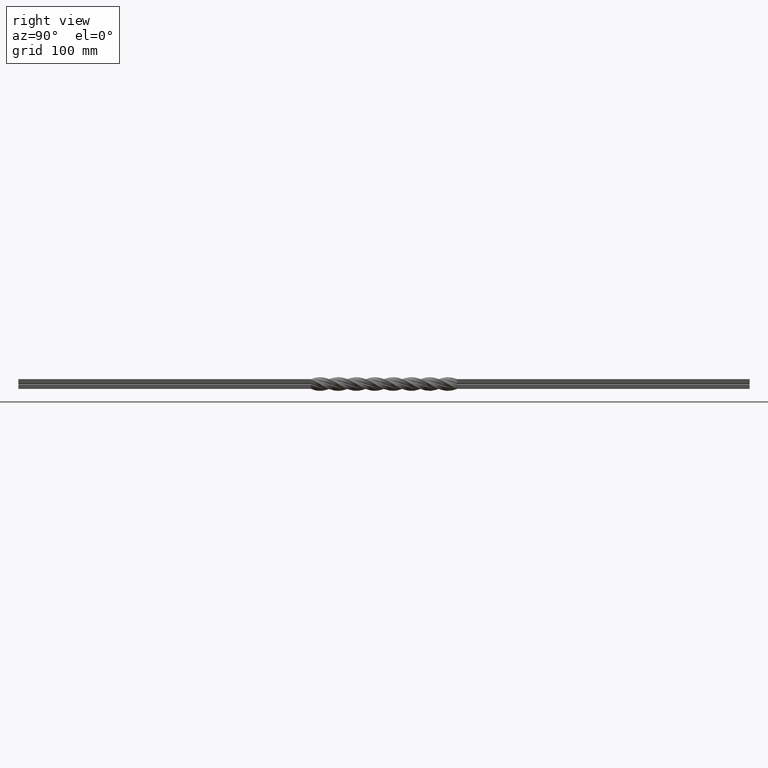
[diagram: clean part render]
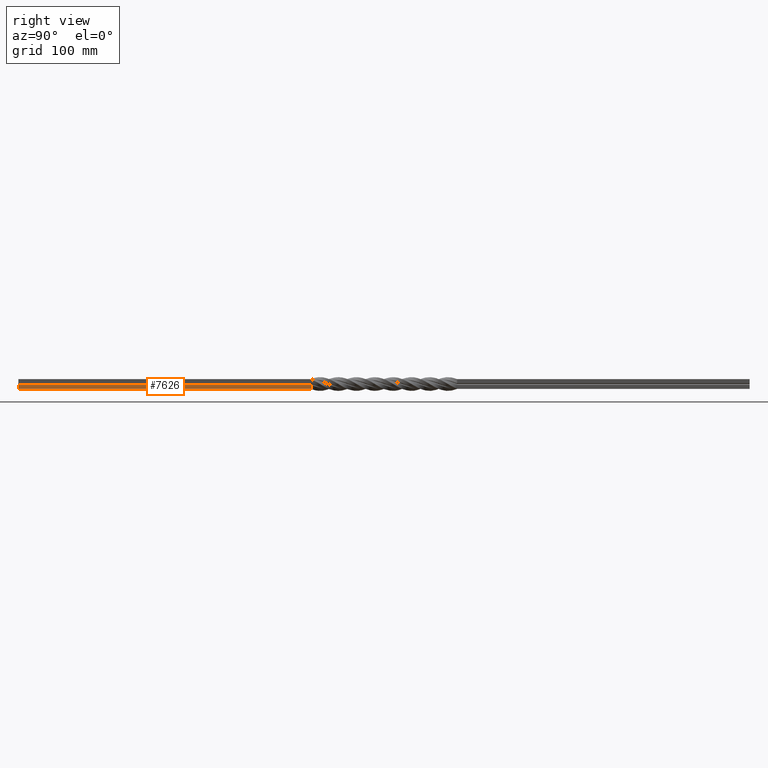
[diagram: same view with one face highlighted and labeled with its STEP entity id]
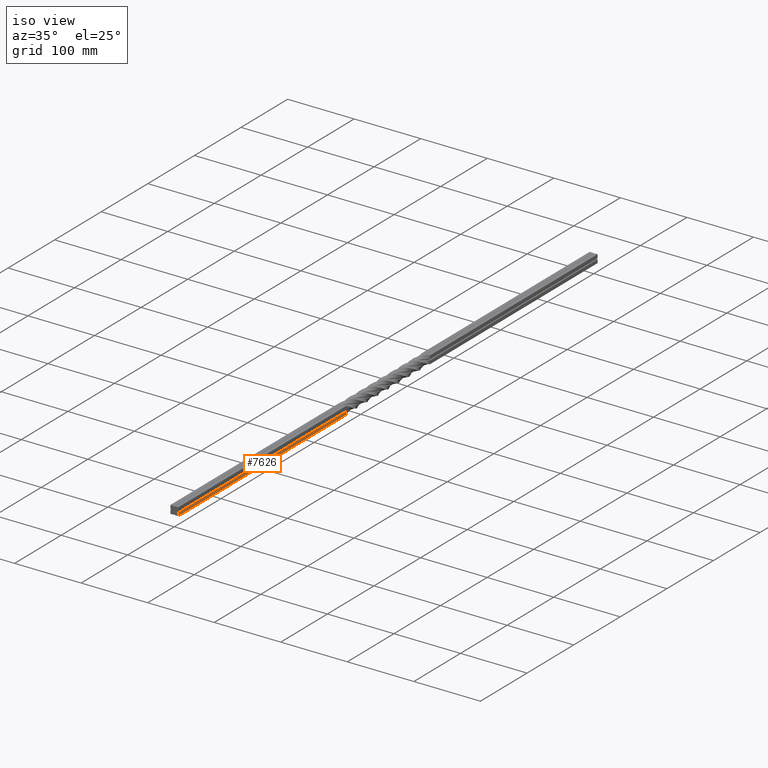
[diagram: same view with one face highlighted and labeled with its STEP entity id]
A machine part, right view. The second image highlights one B-rep face of the part: STEP entity #7626.
A second angle (iso view) of the same face is appended — the face is thin or edge-on in the first view.
In plain terms, the highlighted planar face has unit normal (1, 0, -0).
Its self-contained STEP definition (entity closure, byte-faithful):
#19 = CARTESIAN_POINT ( 'NONE',  ( 6.000000000000001776, 900.0000000000000000, -6.000000000000000888 ) ) ;
#565 = EDGE_CURVE ( 'NONE', #7237, #10156, #7355, .T. ) ;
#738 = LINE ( 'NONE', #3826, #11561 ) ;
#966 = CARTESIAN_POINT ( 'NONE',  ( 6.000000000000006217, 900.0000000000000000, -0.9999999999999893419 ) ) ;
#2046 = VECTOR ( 'NONE', #10468, 1000.000000000000000 ) ;
#2074 = VECTOR ( 'NONE', #12836, 1000.000000000000000 ) ;
#2757 = EDGE_LOOP ( 'NONE', ( #11494, #8258, #9639, #8709 ) ) ;
#2903 = CARTESIAN_POINT ( 'NONE',  ( 6.000000000000006217, 359.9999999999999432, -0.9999999999999893419 ) ) ;
#3041 = DIRECTION ( 'NONE',  ( -0.000000000000000000, -1.000000000000000000, -0.000000000000000000 ) ) ;
#3538 = CARTESIAN_POINT ( 'NONE',  ( 6.000000000000001776, 900.0000000000000000, -6.000000000000000888 ) ) ;
#3826 = CARTESIAN_POINT ( 'NONE',  ( 6.000000000000001776, 0.000000000000000000, -6.000000000000000888 ) ) ;
#4449 = DIRECTION ( 'NONE',  ( -8.673617379884015751E-16, 0.000000000000000000, -1.000000000000000000 ) ) ;
#5672 = DIRECTION ( 'NONE',  ( 1.000000000000000000, 0.000000000000000000, -8.673617379884015751E-16 ) ) ;
#5932 = CARTESIAN_POINT ( 'NONE',  ( 6.000000000000001776, 0.000000000000000000, -6.000000000000000888 ) ) ;
#6236 = EDGE_CURVE ( 'NONE', #11997, #7358, #738, .T. ) ;
#6573 = CARTESIAN_POINT ( 'NONE',  ( 6.000000000000001776, 360.0000000000000000, -6.000000000000000888 ) ) ;
#6828 = CARTESIAN_POINT ( 'NONE',  ( 6.000000000000001776, 360.0000000000000000, -6.000000000000000888 ) ) ;
#7237 = VERTEX_POINT ( 'NONE', #6828 ) ;
#7355 = LINE ( 'NONE', #6573, #2074 ) ;
#7358 = VERTEX_POINT ( 'NONE', #10210 ) ;
#7626 = ADVANCED_FACE ( 'NONE', ( #11026 ), #7694, .T. ) ;
#7694 = PLANE ( 'NONE',  #10683 ) ;
#7981 = VECTOR ( 'NONE', #3041, 1000.000000000000000 ) ;
#8161 = LINE ( 'NONE', #966, #7981 ) ;
#8258 = ORIENTED_EDGE ( 'NONE', *, *, #565, .T. ) ;
#8709 = ORIENTED_EDGE ( 'NONE', *, *, #6236, .F. ) ;
#9449 = DIRECTION ( 'NONE',  ( 8.673617379884015751E-16, 0.000000000000000000, 1.000000000000000000 ) ) ;
#9639 = ORIENTED_EDGE ( 'NONE', *, *, #11800, .T. ) ;
#10156 = VERTEX_POINT ( 'NONE', #2903 ) ;
#10210 = CARTESIAN_POINT ( 'NONE',  ( 6.000000000000006217, 0.000000000000000000, -0.9999999999999893419 ) ) ;
#10468 = DIRECTION ( 'NONE',  ( -0.000000000000000000, -1.000000000000000000, -0.000000000000000000 ) ) ;
#10683 = AXIS2_PLACEMENT_3D ( 'NONE', #3538, #5672, #4449 ) ;
#11026 = FACE_OUTER_BOUND ( 'NONE', #2757, .T. ) ;
#11494 = ORIENTED_EDGE ( 'NONE', *, *, #11669, .F. ) ;
#11561 = VECTOR ( 'NONE', #9449, 1000.000000000000000 ) ;
#11669 = EDGE_CURVE ( 'NONE', #7237, #11997, #12578, .T. ) ;
#11800 = EDGE_CURVE ( 'NONE', #10156, #7358, #8161, .T. ) ;
#11997 = VERTEX_POINT ( 'NONE', #5932 ) ;
#12578 = LINE ( 'NONE', #19, #2046 ) ;
#12836 = DIRECTION ( 'NONE',  ( 8.673617379884015751E-16, -6.410137294958977184E-19, 1.000000000000000000 ) ) ;